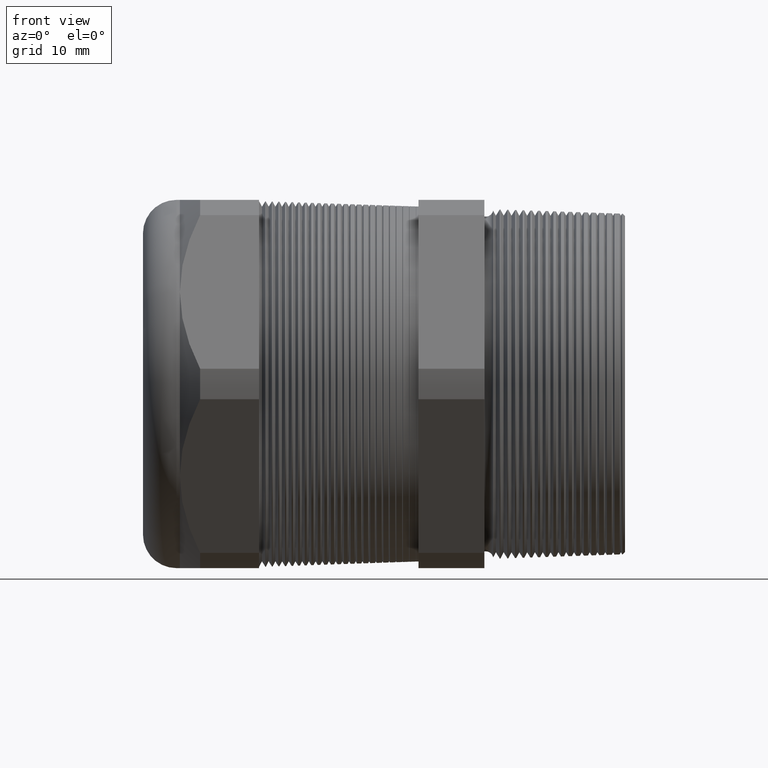
[diagram: clean part render]
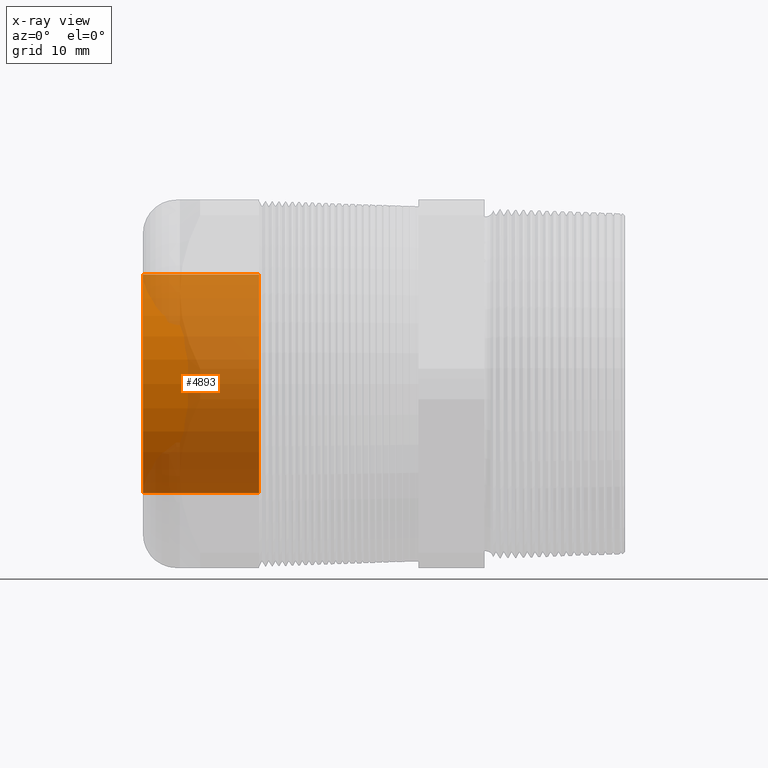
[diagram: x-ray — body ghosted, one internal face saturated and labeled with its STEP entity id]
A machine part, front view, then the same camera in x-ray: the body is ghosted and one INTERNAL B-rep face — a face not visible from any outside direction — is saturated and labeled: STEP entity #4893.
In plain terms, the highlighted cylindrical surface (partial cylindrical patch) has radius 12.446 mm, axis along (1, 0, 0).
Its self-contained STEP definition (entity closure, byte-faithful):
#442 = CARTESIAN_POINT ( 'NONE',  ( -1.320314960629921200, 0.0000000000000000000, -0.4899999999999999900 ) ) ;
#443 = CARTESIAN_POINT ( 'NONE',  ( -1.320314960629921200, 6.000769315822029800E-017, 0.4899999999999999900 ) ) ;
#444 = DIRECTION ( 'NONE',  ( 0.0000000000000000000, 0.0000000000000000000, -1.000000000000000000 ) ) ;
#445 = DIRECTION ( 'NONE',  ( 1.000000000000000000, 0.0000000000000000000, 0.0000000000000000000 ) ) ;
#446 = AXIS2_PLACEMENT_3D ( 'NONE', #452, #445, #444 ) ;
#447 = CIRCLE ( 'NONE', #446, 0.4899999999999999900 ) ;
#452 = CARTESIAN_POINT ( 'NONE',  ( -1.320314960629921200, 0.0000000000000000000, 0.0000000000000000000 ) ) ;
#548 = DIRECTION ( 'NONE',  ( 1.000000000000000000, 0.0000000000000000000, 0.0000000000000000000 ) ) ;
#549 = VECTOR ( 'NONE', #548, 39.37007874015748100 ) ;
#550 = CARTESIAN_POINT ( 'NONE',  ( 0.0000000000000000000, 0.0000000000000000000, -0.4899999999999999900 ) ) ;
#551 = LINE ( 'NONE', #550, #549 ) ;
#560 = DIRECTION ( 'NONE',  ( 1.000000000000000000, 0.0000000000000000000, 0.0000000000000000000 ) ) ;
#561 = VECTOR ( 'NONE', #560, 39.37007874015748100 ) ;
#562 = CARTESIAN_POINT ( 'NONE',  ( 0.0000000000000000000, 6.000769315822029800E-017, 0.4899999999999999900 ) ) ;
#563 = LINE ( 'NONE', #562, #561 ) ;
#564 = CARTESIAN_POINT ( 'NONE',  ( -1.840000000000000100, 0.0000000000000000000, -0.4899999999999999900 ) ) ;
#565 = CARTESIAN_POINT ( 'NONE',  ( -1.840000000000000100, 6.000769315822029800E-017, 0.4899999999999999900 ) ) ;
#566 = DIRECTION ( 'NONE',  ( 0.0000000000000000000, 0.0000000000000000000, -1.000000000000000000 ) ) ;
#567 = DIRECTION ( 'NONE',  ( 1.000000000000000000, 0.0000000000000000000, 0.0000000000000000000 ) ) ;
#568 = AXIS2_PLACEMENT_3D ( 'NONE', #574, #567, #566 ) ;
#569 = CIRCLE ( 'NONE', #568, 0.4899999999999999900 ) ;
#570 = DIRECTION ( 'NONE',  ( 0.0000000000000000000, 0.0000000000000000000, -1.000000000000000000 ) ) ;
#571 = DIRECTION ( 'NONE',  ( 1.000000000000000000, 0.0000000000000000000, 0.0000000000000000000 ) ) ;
#572 = CARTESIAN_POINT ( 'NONE',  ( 0.0000000000000000000, 0.0000000000000000000, 0.0000000000000000000 ) ) ;
#573 = AXIS2_PLACEMENT_3D ( 'NONE', #572, #571, #570 ) ;
#574 = CARTESIAN_POINT ( 'NONE',  ( -1.840000000000000100, 0.0000000000000000000, 0.0000000000000000000 ) ) ;
#575 = CYLINDRICAL_SURFACE ( 'NONE', #573, 0.4899999999999999900 ) ;
#576 = FACE_OUTER_BOUND ( 'NONE', #4894, .T. ) ;
#4820 = ORIENTED_EDGE ( 'NONE', *, *, #4831, .T. ) ;
#4831 = EDGE_CURVE ( 'NONE', #4832, #4833, #447, .T. ) ;
#4832 = VERTEX_POINT ( 'NONE', #443 ) ;
#4833 = VERTEX_POINT ( 'NONE', #442 ) ;
#4873 = ORIENTED_EDGE ( 'NONE', *, *, #4874, .F. ) ;
#4874 = EDGE_CURVE ( 'NONE', #4898, #4833, #551, .T. ) ;
#4893 = ADVANCED_FACE ( 'NONE', ( #576 ), #575, .F. ) ;
#4894 = EDGE_LOOP ( 'NONE', ( #4895, #4899, #4820, #4873 ) ) ;
#4895 = ORIENTED_EDGE ( 'NONE', *, *, #4896, .F. ) ;
#4896 = EDGE_CURVE ( 'NONE', #4897, #4898, #569, .T. ) ;
#4897 = VERTEX_POINT ( 'NONE', #565 ) ;
#4898 = VERTEX_POINT ( 'NONE', #564 ) ;
#4899 = ORIENTED_EDGE ( 'NONE', *, *, #4900, .T. ) ;
#4900 = EDGE_CURVE ( 'NONE', #4897, #4832, #563, .T. ) ;